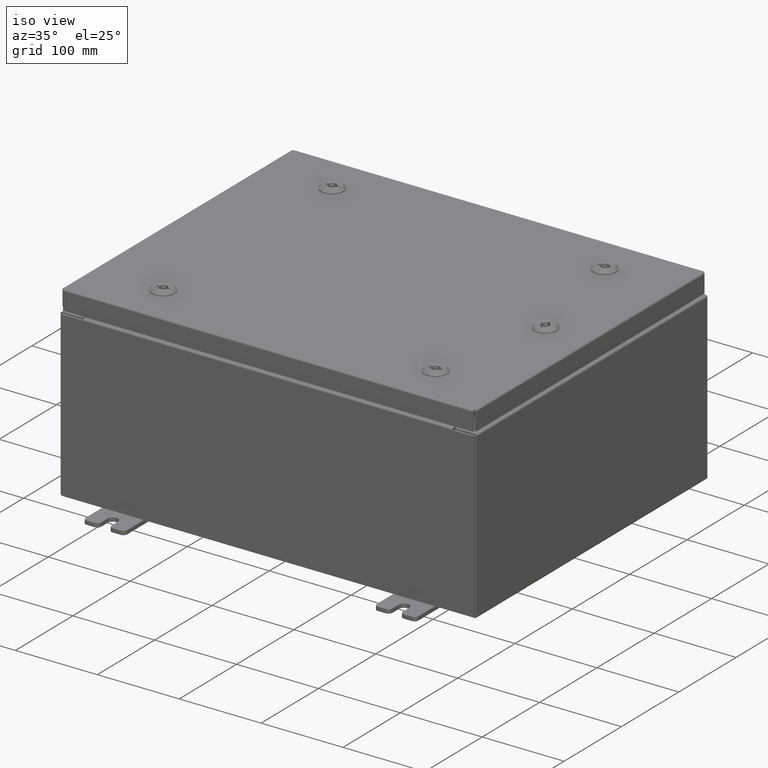
[diagram: clean part render]
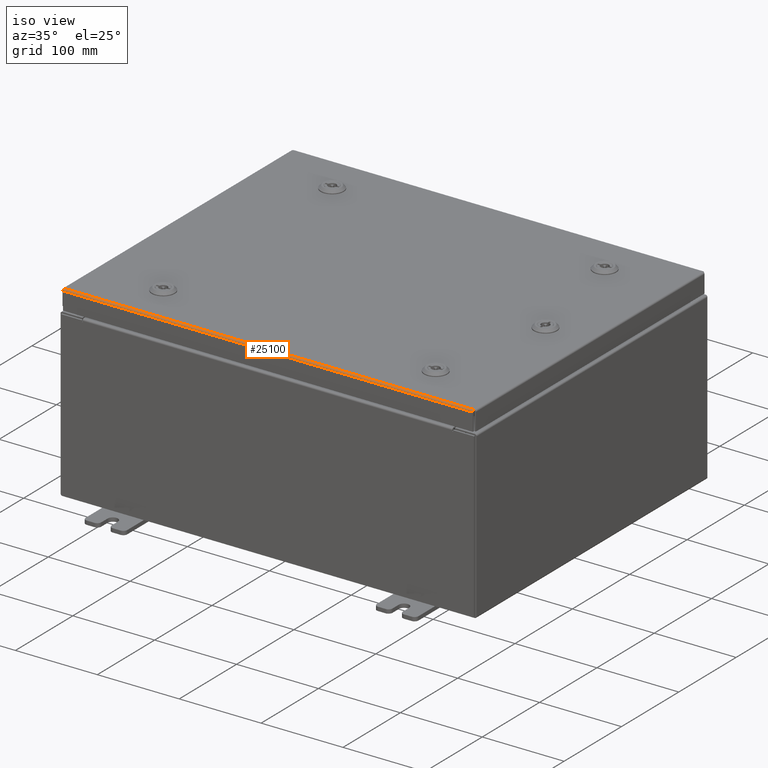
[diagram: same view with one face highlighted and labeled with its STEP entity id]
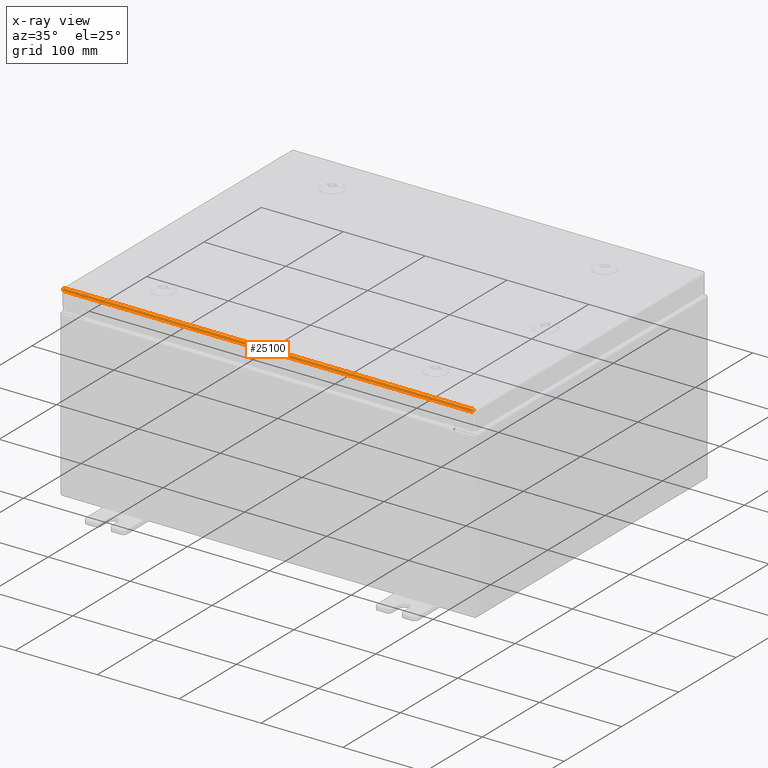
[diagram: x-ray of the same camera — body ghosted, the highlighted face saturated]
A machine part, iso view. The second image highlights one B-rep face of the part: STEP entity #25100.
The next image is the same camera in x-ray: the body ghosted, the highlighted face saturated — about 0% of this face is hidden behind the body in this view.
In plain terms, the highlighted cylindrical surface (edge-blend (fillet) strip) has radius 2.2276 mm, axis along (-1, 0, 0).
Its self-contained STEP definition (entity closure, byte-faithful):
#462 = CARTESIAN_POINT ( 'NONE',  ( 9.849704822031359400, -7.861279903154991400, -1.719743664956860300E-016 ) ) ;
#2216 = EDGE_CURVE ( 'NONE', #25030, #51788, #53759, .T. ) ;
#2272 = CARTESIAN_POINT ( 'NONE',  ( -9.849704822031354100, -7.861279903154992300, -1.710739771423055000E-016 ) ) ;
#2978 = EDGE_CURVE ( 'NONE', #20282, #51788, #10982, .T. ) ;
#3675 = VECTOR ( 'NONE', #51503, 39.37007874015748100 ) ;
#8038 = DIRECTION ( 'NONE',  ( 0.0000000000000000000, -1.000000000000000000, 3.893740013774593800E-015 ) ) ;
#8951 = LINE ( 'NONE', #47119, #59080 ) ;
#10982 = B_SPLINE_CURVE_WITH_KNOTS ( 'NONE', 3,
 ( #14710, #462, #39298, #44174, #15126, #49059, #19990, #53963, #24866, #58845 ),
 .UNSPECIFIED., .F., .F.,
 ( 4, 2, 2, 2, 4 ),
 ( 0.0000000000000000000, 0.2500000000000000000, 0.5000000000000000000, 0.7500000000000000000, 1.000000000000000000 ),
 .UNSPECIFIED. ) ;
#14710 = CARTESIAN_POINT ( 'NONE',  ( 9.849800000000001900, -7.849799999999999200, 0.0000000000000000000 ) ) ;
#15126 = CARTESIAN_POINT ( 'NONE',  ( 9.849324110156782600, -7.903695747341799900, -0.01756921792167970600 ) ) ;
#15994 = ORIENTED_EDGE ( 'NONE', *, *, #19034, .F. ) ;
#19034 = EDGE_CURVE ( 'NONE', #23728, #20282, #8951, .T. ) ;
#19990 = CARTESIAN_POINT ( 'NONE',  ( 9.849038576250846300, -7.926431066258667900, -0.04353261542147215300 ) ) ;
#20282 = VERTEX_POINT ( 'NONE', #38162 ) ;
#20640 = FACE_OUTER_BOUND ( 'NONE', #47110, .T. ) ;
#21332 = CARTESIAN_POINT ( 'NONE',  ( -9.848657864376269400, -7.937499999999999100, -0.08770000000000026400 ) ) ;
#21544 = CARTESIAN_POINT ( 'NONE',  ( -9.849038576250844600, -7.926431066258667900, -0.04353261542147215300 ) ) ;
#22601 = ORIENTED_EDGE ( 'NONE', *, *, #62364, .F. ) ;
#23728 = VERTEX_POINT ( 'NONE', #51515 ) ;
#24866 = CARTESIAN_POINT ( 'NONE',  ( 9.848753042344915400, -7.937499999999999100, -0.07622009684500726000 ) ) ;
#25030 = VERTEX_POINT ( 'NONE', #51317 ) ;
#25100 = ADVANCED_FACE ( 'NONE', ( #20640 ), #32055, .T. ) ;
#26455 = CARTESIAN_POINT ( 'NONE',  ( -9.849324110156775400, -7.903695747341799900, -0.01756921792167971000 ) ) ;
#27806 = DIRECTION ( 'NONE',  ( 1.000000000000000000, -0.0000000000000000000, -0.0000000000000000000 ) ) ;
#31339 = CARTESIAN_POINT ( 'NONE',  ( -9.849609644062709900, -7.872755289458309500, -0.002282596256188894300 ) ) ;
#32055 = CYLINDRICAL_SURFACE ( 'NONE', #43171, 0.08770000000000026400 ) ;
#36206 = CARTESIAN_POINT ( 'NONE',  ( -9.849799999999996600, -7.849799999999999200, 0.0000000000000000000 ) ) ;
#38162 = CARTESIAN_POINT ( 'NONE',  ( 9.849800000000001900, -7.849799999999999200, 0.0000000000000000000 ) ) ;
#39092 = B_SPLINE_CURVE_WITH_KNOTS ( 'NONE', 3,
 ( #21332, #50444, #50642, #21544, #55538, #26455, #60429, #31339, #2272, #36206 ),
 .UNSPECIFIED., .F., .F.,
 ( 4, 2, 2, 2, 4 ),
 ( 0.0000000000000000000, 0.2500000000000000000, 0.5000000000000000000, 0.7500000000000000000, 1.000000000000000000 ),
 .UNSPECIFIED. ) ;
#39298 = CARTESIAN_POINT ( 'NONE',  ( 9.849609644062715200, -7.872755289458309500, -0.002282596256188893000 ) ) ;
#41921 = CARTESIAN_POINT ( 'NONE',  ( 9.937500000000001800, -7.937499999999999100, -0.08770000000000026400 ) ) ;
#41939 = CARTESIAN_POINT ( 'NONE',  ( -9.849799999999996600, -7.849799999999999200, -0.08770000000000026400 ) ) ;
#43171 = AXIS2_PLACEMENT_3D ( 'NONE', #41939, #46851, #8038 ) ;
#44174 = CARTESIAN_POINT ( 'NONE',  ( 9.849419288125425000, -7.893967384578527200, -0.01106893374133172100 ) ) ;
#45642 = ORIENTED_EDGE ( 'NONE', *, *, #2978, .F. ) ;
#46851 = DIRECTION ( 'NONE',  ( -1.000000000000000000, 0.0000000000000000000, 0.0000000000000000000 ) ) ;
#47110 = EDGE_LOOP ( 'NONE', ( #15994, #22601, #51050, #45642 ) ) ;
#47119 = CARTESIAN_POINT ( 'NONE',  ( -9.849799999999996600, -7.849799999999999200, 0.0000000000000000000 ) ) ;
#49059 = CARTESIAN_POINT ( 'NONE',  ( 9.849133754219494100, -7.919930782078321100, -0.03380425265820001500 ) ) ;
#50444 = CARTESIAN_POINT ( 'NONE',  ( -9.848753042344910100, -7.937499999999997300, -0.07622009684500721800 ) ) ;
#50642 = CARTESIAN_POINT ( 'NONE',  ( -9.848848220313559700, -7.935217403743811500, -0.06474471054169110600 ) ) ;
#51050 = ORIENTED_EDGE ( 'NONE', *, *, #2216, .T. ) ;
#51317 = CARTESIAN_POINT ( 'NONE',  ( -9.848657864376269400, -7.937499999999999100, -0.08770000000000026400 ) ) ;
#51503 = DIRECTION ( 'NONE',  ( 1.000000000000000000, 4.699145404622725200E-031, -1.802587771145536000E-045 ) ) ;
#51515 = CARTESIAN_POINT ( 'NONE',  ( -9.849799999999996600, -7.849799999999999200, 0.0000000000000000000 ) ) ;
#51788 = VERTEX_POINT ( 'NONE', #55602 ) ;
#53759 = LINE ( 'NONE', #41921, #3675 ) ;
#53963 = CARTESIAN_POINT ( 'NONE',  ( 9.848848220313561400, -7.935217403743811500, -0.06474471054169110600 ) ) ;
#55538 = CARTESIAN_POINT ( 'NONE',  ( -9.849133754219488800, -7.919930782078320200, -0.03380425265820001500 ) ) ;
#55602 = CARTESIAN_POINT ( 'NONE',  ( 9.848657864376273000, -7.937499999999999100, -0.08770000000000026400 ) ) ;
#58845 = CARTESIAN_POINT ( 'NONE',  ( 9.848657864376273000, -7.937499999999999100, -0.08770000000000026400 ) ) ;
#59080 = VECTOR ( 'NONE', #27806, 39.37007874015748100 ) ;
#60429 = CARTESIAN_POINT ( 'NONE',  ( -9.849419288125421400, -7.893967384578528100, -0.01106893374133172500 ) ) ;
#62364 = EDGE_CURVE ( 'NONE', #25030, #23728, #39092, .T. ) ;